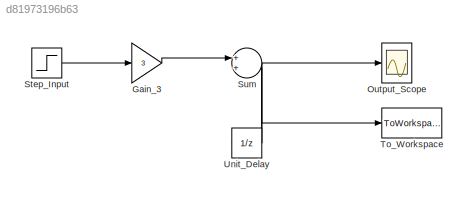
MODEL slx_d81973196b63
KIND model
CONFIG AbsTol = auto
CONFIG EnableMultiTasking = off
CONFIG FixedStep = 1
CONFIG MaxStep = auto
CONFIG MinStep = auto
CONFIG RelTol = 1e-3
CONFIG SampleTimeConstraint = Unconstrained
CONFIG SolverName = FixedStepDiscrete
CONFIG StartTime = 0.0
CONFIG StopTime = 20
BLOCK [Gain] Gain_3
  Gain = 3
BLOCK [Scope] Output_Scope
  Floating = off
  GraphicalSettings = {"GraphicalSettings":{"LegacySettings":true,"Style":{"Style":{"PlotType":"Auto"}}}}
  NumInputPorts = 1
  WasSavedAsWebScope = on
BLOCK [Step] Step_Input
  SampleTime = 0
  Time = 0
BLOCK [Sum] Sum
BLOCK [ToWorkspace] To_Workspace
  FixptAsFi = on
  MaxDataPoints = inf
  SampleTime = -1
  VariableName = y_out1
BLOCK [UnitDelay] Unit_Delay
  HasFrameUpgradeWarning = on
LINE Gain_3:1 -> Sum:1
LINE Step_Input:1 -> Gain_3:1
NET Sum:1 -> Output_Scope:1, To_Workspace:1, Unit_Delay:1
LINE Unit_Delay:1 -> Sum:2
note: NET lines group one-source signal fan-out (src -> all destinations, sorted); 1:1 wires keep LINE
